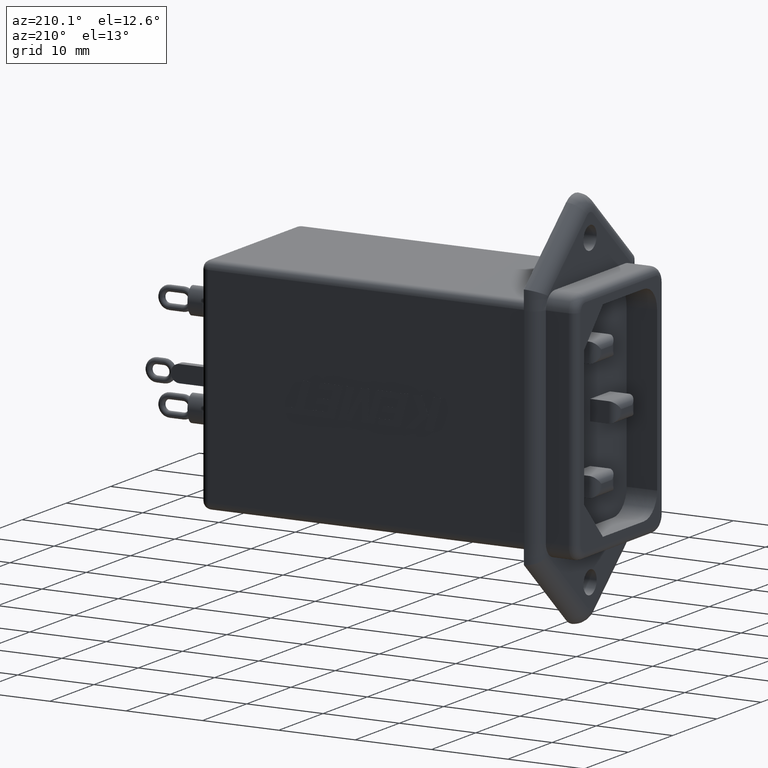
[diagram: clean part render]
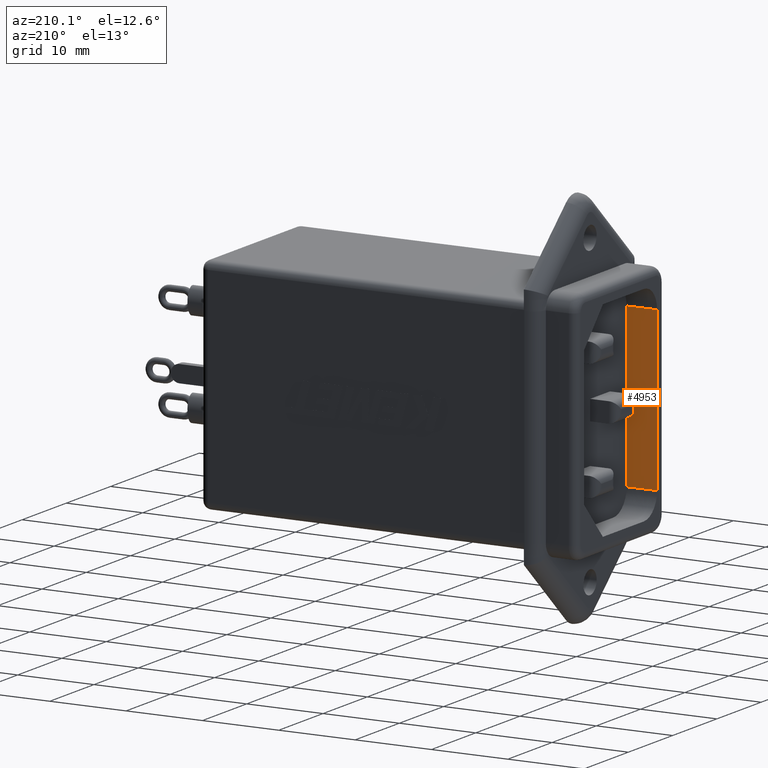
[diagram: same view with one face highlighted and labeled with its STEP entity id]
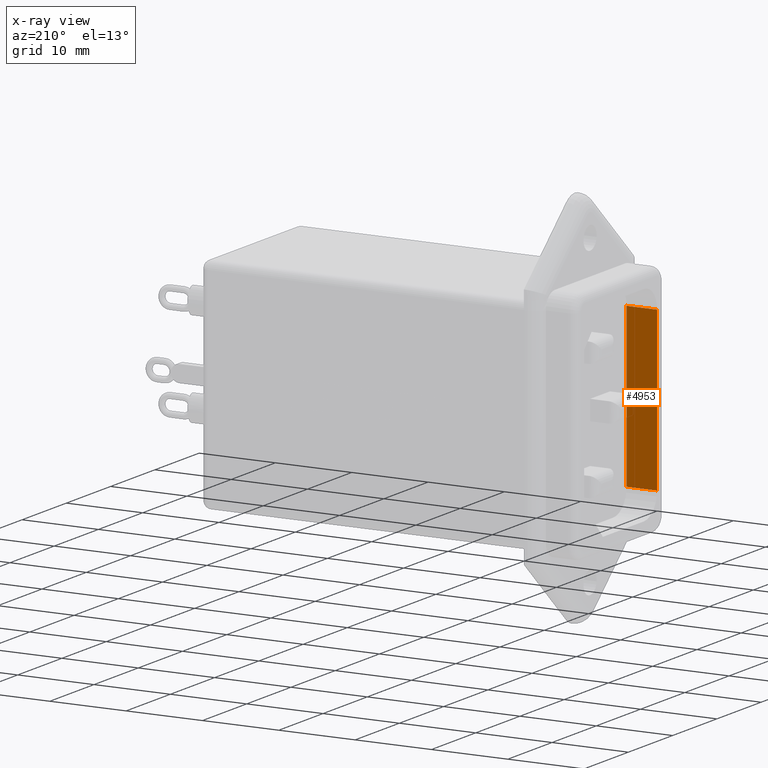
[diagram: x-ray of the same camera — body ghosted, the highlighted face saturated]
A machine part, auxiliary view. The second image highlights one B-rep face of the part: STEP entity #4953.
The next image is the same camera in x-ray: the body ghosted, the highlighted face saturated — about 0% of this face is hidden behind the body in this view.
In plain terms, the highlighted planar face has unit normal (0, -1, 0).
Its self-contained STEP definition (entity closure, byte-faithful):
#175 = DIRECTION ( 'NONE',  ( 0.0000000000000000000, 0.0000000000000000000, -1.000000000000000000 ) ) ;
#241 = VECTOR ( 'NONE', #768, 1000.000000000000000 ) ;
#421 = CARTESIAN_POINT ( 'NONE',  ( 5.500000000000000000, -18.25000000000001400, 4.999999999999997300 ) ) ;
#745 = CARTESIAN_POINT ( 'NONE',  ( 0.0000000000000000000, -18.25000000000001400, 4.999999999999997300 ) ) ;
#764 = LINE ( 'NONE', #7565, #5256 ) ;
#768 = DIRECTION ( 'NONE',  ( 0.0000000000000000000, 0.0000000000000000000, 1.000000000000000000 ) ) ;
#770 = VERTEX_POINT ( 'NONE', #2112 ) ;
#931 = CARTESIAN_POINT ( 'NONE',  ( 5.500000000000000000, -18.25000000000001400, 25.99999999999999300 ) ) ;
#1324 = FACE_OUTER_BOUND ( 'NONE', #6217, .T. ) ;
#1326 = VERTEX_POINT ( 'NONE', #5757 ) ;
#1555 = EDGE_CURVE ( 'NONE', #770, #2627, #3164, .T. ) ;
#1748 = AXIS2_PLACEMENT_3D ( 'NONE', #6419, #2722, #2624 ) ;
#1806 = CARTESIAN_POINT ( 'NONE',  ( 0.0000000000000000000, -18.25000000000001400, 4.999999999999997300 ) ) ;
#2001 = PLANE ( 'NONE',  #1748 ) ;
#2112 = CARTESIAN_POINT ( 'NONE',  ( 4.000000000000000000, -18.25000000000001400, 4.999999999999997300 ) ) ;
#2324 = VERTEX_POINT ( 'NONE', #5743 ) ;
#2382 = ORIENTED_EDGE ( 'NONE', *, *, #3200, .T. ) ;
#2624 = DIRECTION ( 'NONE',  ( 0.0000000000000000000, -0.0000000000000000000, -1.000000000000000000 ) ) ;
#2627 = VERTEX_POINT ( 'NONE', #1806 ) ;
#2722 = DIRECTION ( 'NONE',  ( 0.0000000000000000000, -1.000000000000000000, 0.0000000000000000000 ) ) ;
#3164 = LINE ( 'NONE', #421, #6721 ) ;
#3200 = EDGE_CURVE ( 'NONE', #2627, #1326, #5533, .T. ) ;
#4105 = LINE ( 'NONE', #931, #7026 ) ;
#4314 = ORIENTED_EDGE ( 'NONE', *, *, #7084, .F. ) ;
#4953 = ADVANCED_FACE ( 'NONE', ( #1324 ), #2001, .F. ) ;
#5256 = VECTOR ( 'NONE', #175, 1000.000000000000000 ) ;
#5533 = LINE ( 'NONE', #745, #241 ) ;
#5743 = CARTESIAN_POINT ( 'NONE',  ( 4.000000000000000000, -18.25000000000001400, 25.99999999999999300 ) ) ;
#5757 = CARTESIAN_POINT ( 'NONE',  ( 0.0000000000000000000, -18.25000000000001400, 25.99999999999999300 ) ) ;
#6090 = EDGE_CURVE ( 'NONE', #2324, #770, #764, .T. ) ;
#6217 = EDGE_LOOP ( 'NONE', ( #4314, #7781, #7752, #2382 ) ) ;
#6419 = CARTESIAN_POINT ( 'NONE',  ( 5.500000000000000000, -18.25000000000001400, 4.999999999999997300 ) ) ;
#6574 = DIRECTION ( 'NONE',  ( -1.000000000000000000, -0.0000000000000000000, -0.0000000000000000000 ) ) ;
#6721 = VECTOR ( 'NONE', #6574, 1000.000000000000000 ) ;
#7026 = VECTOR ( 'NONE', #7592, 1000.000000000000000 ) ;
#7084 = EDGE_CURVE ( 'NONE', #2324, #1326, #4105, .T. ) ;
#7565 = CARTESIAN_POINT ( 'NONE',  ( 4.000000000000000000, -18.25000000000001400, 4.999999999999997300 ) ) ;
#7592 = DIRECTION ( 'NONE',  ( -1.000000000000000000, -0.0000000000000000000, -0.0000000000000000000 ) ) ;
#7752 = ORIENTED_EDGE ( 'NONE', *, *, #1555, .T. ) ;
#7781 = ORIENTED_EDGE ( 'NONE', *, *, #6090, .T. ) ;